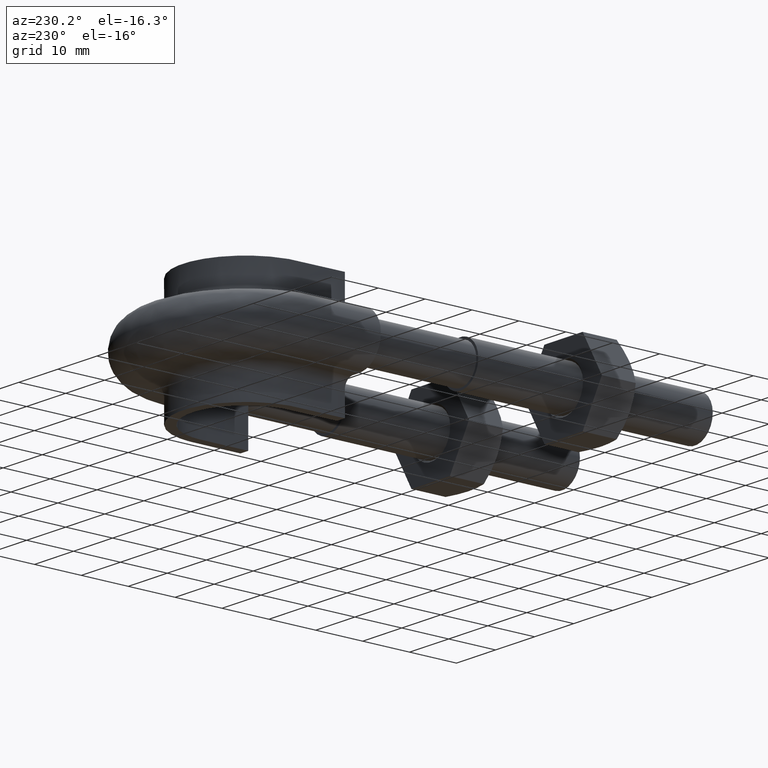
[diagram: clean part render]
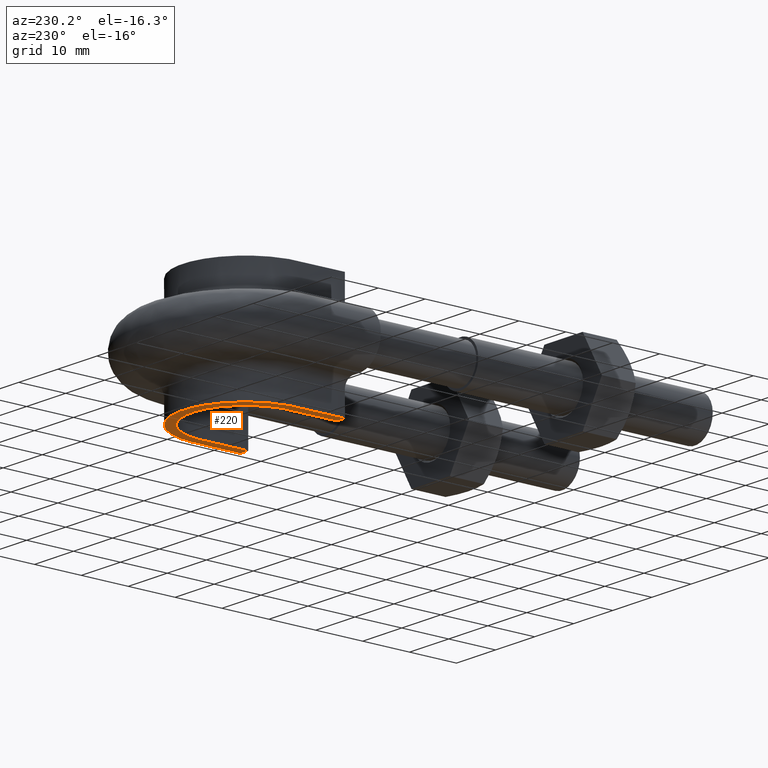
[diagram: same view with one face highlighted and labeled with its STEP entity id]
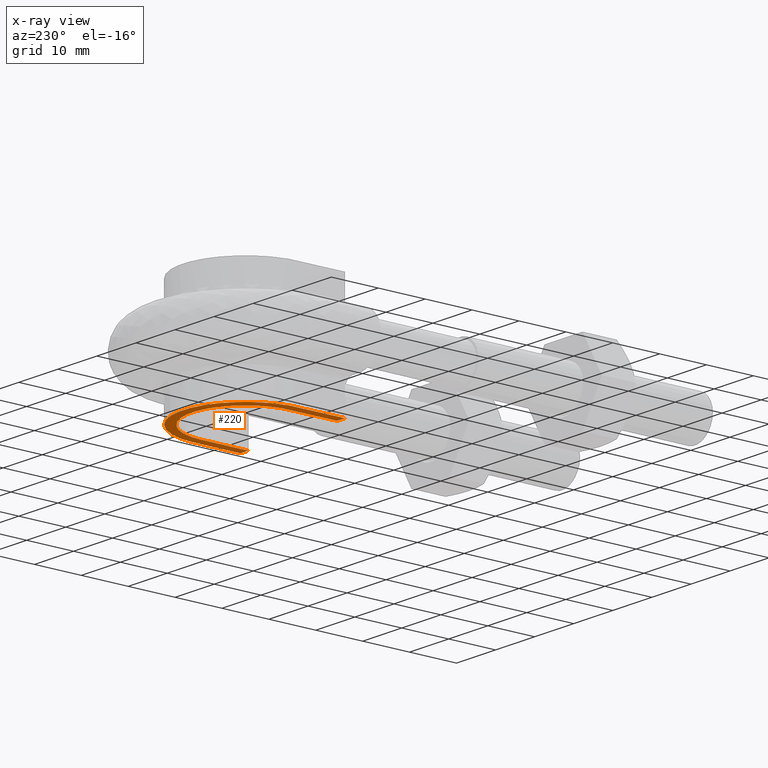
[diagram: x-ray of the same camera — body ghosted, the highlighted face saturated]
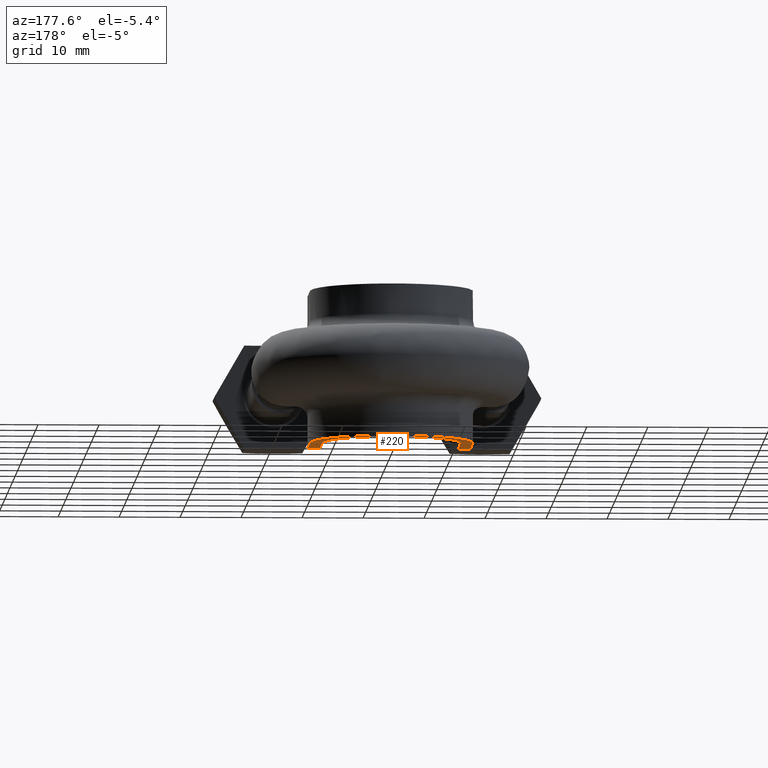
[diagram: same view with one face highlighted and labeled with its STEP entity id]
A machine part, auxiliary view. The second image highlights one B-rep face of the part: STEP entity #220.
The next image is the same camera in x-ray: the body ghosted, the highlighted face saturated — about 0% of this face is hidden behind the body in this view.
A second angle (auxiliary view) of the same face is appended — the face is thin or edge-on in the first view.
In plain terms, the highlighted planar face has unit normal (0, 0, 1).
Its self-contained STEP definition (entity closure, byte-faithful):
#220 = ADVANCED_FACE( '', ( #299 ), #300, .F. );
#299 = FACE_OUTER_BOUND( '', #471, .T. );
#300 = PLANE( '', #472 );
#471 = EDGE_LOOP( '', ( #1555, #1556, #1557, #1558 ) );
#472 = AXIS2_PLACEMENT_3D( '', #1559, #1560, #1561 );
#1555 = ORIENTED_EDGE( '', *, *, #2092, .F. );
#1556 = ORIENTED_EDGE( '', *, *, #2091, .F. );
#1557 = ORIENTED_EDGE( '', *, *, #2093, .F. );
#1558 = ORIENTED_EDGE( '', *, *, #2094, .F. );
#1559 = CARTESIAN_POINT( '', ( 25.0000000000000, 111.600000000000, -12.5000000000000 ) );
#1560 = DIRECTION( '', ( 0.000000000000000, 0.000000000000000, 1.00000000000000 ) );
#1561 = DIRECTION( '', ( 1.22460635382238E-016, 1.00000000000000, 0.000000000000000 ) );
#2091 = EDGE_CURVE( '', #2246, #2241, #2248, .T. );
#2092 = EDGE_CURVE( '', #2241, #2249, #2250, .T. );
#2093 = EDGE_CURVE( '', #2251, #2246, #2252, .F. );
#2094 = EDGE_CURVE( '', #2249, #2251, #2253, .T. );
#2241 = VERTEX_POINT( '', #2500 );
#2246 = VERTEX_POINT( '', #2507 );
#2248 = LINE( '', #2539, #2540 );
#2249 = VERTEX_POINT( '', #2541 );
#2250 = B_SPLINE_CURVE_WITH_KNOTS( '', 3, ( #2542, #2543, #2544, #2545, #2546, #2547, #2548, #2549, #2550, #2551, #2552, #2553, #2554, #2555, #2556, #2557, #2558, #2559, #2560 ), .UNSPECIFIED., .F., .F., ( 4, 3, 1, 1, 1, 3, 1, 1, 1, 3, 4 ), ( 0.233587786259540, 1.00000000000000, 1.50000000000000, 2.00000000000000, 3.00000000000000, 3.50000000000000, 4.00000000000000, 5.00000000000000, 5.50000000000000, 6.00000000000000, 6.76641221374046 ), .UNSPECIFIED. );
#2251 = VERTEX_POINT( '', #2561 );
#2252 = B_SPLINE_CURVE_WITH_KNOTS( '', 3, ( #2562, #2563, #2564, #2565, #2566, #2567, #2568, #2569, #2570, #2571, #2572, #2573, #2574, #2575, #2576, #2577, #2578, #2579, #2580 ), .UNSPECIFIED., .F., .F., ( 4, 3, 1, 1, 1, 3, 1, 1, 1, 3, 4 ), ( 0.233587786259541, 1.00000000000000, 1.50000000000000, 2.00000000000000, 3.00000000000000, 3.50000000000000, 4.00000000000000, 5.00000000000000, 5.50000000000000, 6.00000000000000, 6.76641221374046 ), .UNSPECIFIED. );
#2253 = LINE( '', #2581, #2582 );
#2500 = CARTESIAN_POINT( '', ( -11.3600000000000, 71.6000000000000, -12.5000000000000 ) );
#2507 = CARTESIAN_POINT( '', ( -13.3600000000002, 71.6000000000000, -12.5000000000000 ) );
#2539 = CARTESIAN_POINT( '', ( -25.0000000000000, 71.6000000000000, -12.5000000000000 ) );
#2540 = VECTOR( '', #3111, 1000.00000000000 );
#2541 = CARTESIAN_POINT( '', ( 11.3600000000000, 71.6000000000000, -12.5000000000000 ) );
#2542 = CARTESIAN_POINT( '', ( -11.3600000000000, 71.6000000000000, -12.5000000000000 ) );
#2543 = CARTESIAN_POINT( '', ( -11.3600000000000, 74.9466666666667, -12.5000000000000 ) );
#2544 = CARTESIAN_POINT( '', ( -11.3600000000000, 78.2933333333333, -12.5000000000000 ) );
#2545 = CARTESIAN_POINT( '', ( -11.3600000000000, 81.6400000000000, -12.5000000000000 ) );
#2546 = CARTESIAN_POINT( '', ( -11.3600000000000, 82.8077712693896, -12.5000000000000 ) );
#2547 = CARTESIAN_POINT( '', ( -10.9694754798677, 85.2135804441069, -12.5000000000000 ) );
#2548 = CARTESIAN_POINT( '', ( -8.80678888755957, 89.5012231129956, -12.5000000000000 ) );
#2549 = CARTESIAN_POINT( '', ( -4.75977254080473, 92.4440020251130, -12.5000000000000 ) );
#2550 = CARTESIAN_POINT( '', ( -1.18994313520117, 92.9957730711349, -12.5000000000000 ) );
#2551 = CARTESIAN_POINT( '', ( 1.83272153620608E-014, 92.9957730711349, -12.5000000000000 ) );
#2552 = CARTESIAN_POINT( '', ( 1.18994313520120, 92.9957730711349, -12.5000000000000 ) );
#2553 = CARTESIAN_POINT( '', ( 4.75977254080476, 92.4440020251129, -12.5000000000000 ) );
#2554 = CARTESIAN_POINT( '', ( 8.80678888755960, 89.5012231129957, -12.5000000000000 ) );
#2555 = CARTESIAN_POINT( '', ( 10.9694754798677, 85.2135804441069, -12.5000000000000 ) );
#2556 = CARTESIAN_POINT( '', ( 11.3600000000000, 82.8077712693896, -12.5000000000000 ) );
#2557 = CARTESIAN_POINT( '', ( 11.3600000000000, 81.6400000000000, -12.5000000000000 ) );
#2558 = CARTESIAN_POINT( '', ( 11.3600000000000, 78.2933333333333, -12.5000000000000 ) );
#2559 = CARTESIAN_POINT( '', ( 11.3600000000000, 74.9466666666667, -12.5000000000000 ) );
#2560 = CARTESIAN_POINT( '', ( 11.3600000000000, 71.6000000000000, -12.5000000000000 ) );
#2561 = CARTESIAN_POINT( '', ( 13.3600000000002, 71.6000000000000, -12.5000000000000 ) );
#2562 = CARTESIAN_POINT( '', ( -13.3600000000000, 71.6000000000000, -12.5000000000000 ) );
#2563 = CARTESIAN_POINT( '', ( -13.3600000000000, 74.9466666666667, -12.5000000000000 ) );
#2564 = CARTESIAN_POINT( '', ( -13.3600000000000, 78.2933333333333, -12.5000000000000 ) );
#2565 = CARTESIAN_POINT( '', ( -13.3600000000000, 81.6400000000000, -12.5000000000000 ) );
#2566 = CARTESIAN_POINT( '', ( -13.3600000000000, 83.0243844002116, -12.5000000000000 ) );
#2567 = CARTESIAN_POINT( '', ( -12.9030271653615, 85.8385025897862, -12.5000000000000 ) );
#2568 = CARTESIAN_POINT( '', ( -10.3559347208130, 90.8876580329544, -12.5000000000000 ) );
#2569 = CARTESIAN_POINT( '', ( -5.59795283105406, 94.3461150577033, -12.5000000000000 ) );
#2570 = CARTESIAN_POINT( '', ( -1.39948820776350, 94.9945757498437, -12.5000000000000 ) );
#2571 = CARTESIAN_POINT( '', ( 1.38015004491630E-014, 94.9945757498436, -12.5000000000000 ) );
#2572 = CARTESIAN_POINT( '', ( 1.39948820776353, 94.9945757498436, -12.5000000000000 ) );
#2573 = CARTESIAN_POINT( '', ( 5.59795283105408, 94.3461150577032, -12.5000000000000 ) );
#2574 = CARTESIAN_POINT( '', ( 10.3559347208131, 90.8876580329545, -12.5000000000000 ) );
#2575 = CARTESIAN_POINT( '', ( 12.9030271653615, 85.8385025897862, -12.5000000000000 ) );
#2576 = CARTESIAN_POINT( '', ( 13.3600000000000, 83.0243844002116, -12.5000000000000 ) );
#2577 = CARTESIAN_POINT( '', ( 13.3600000000000, 81.6400000000000, -12.5000000000000 ) );
#2578 = CARTESIAN_POINT( '', ( 13.3600000000000, 78.2933333333333, -12.5000000000000 ) );
#2579 = CARTESIAN_POINT( '', ( 13.3600000000000, 74.9466666666667, -12.5000000000000 ) );
#2580 = CARTESIAN_POINT( '', ( 13.3600000000000, 71.6000000000000, -12.5000000000000 ) );
#2581 = CARTESIAN_POINT( '', ( -25.0000000000000, 71.6000000000000, -12.5000000000000 ) );
#2582 = VECTOR( '', #3112, 1000.00000000000 );
#3111 = DIRECTION( '', ( 1.00000000000000, -1.22460635382238E-016, 0.000000000000000 ) );
#3112 = DIRECTION( '', ( 1.00000000000000, -1.22460635382238E-016, 0.000000000000000 ) );